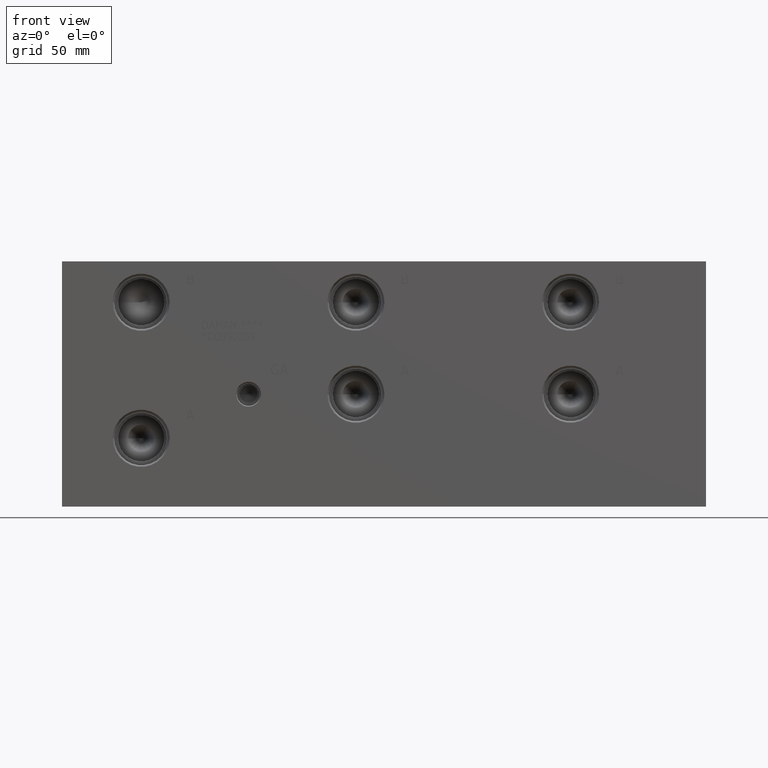
[diagram: clean part render]
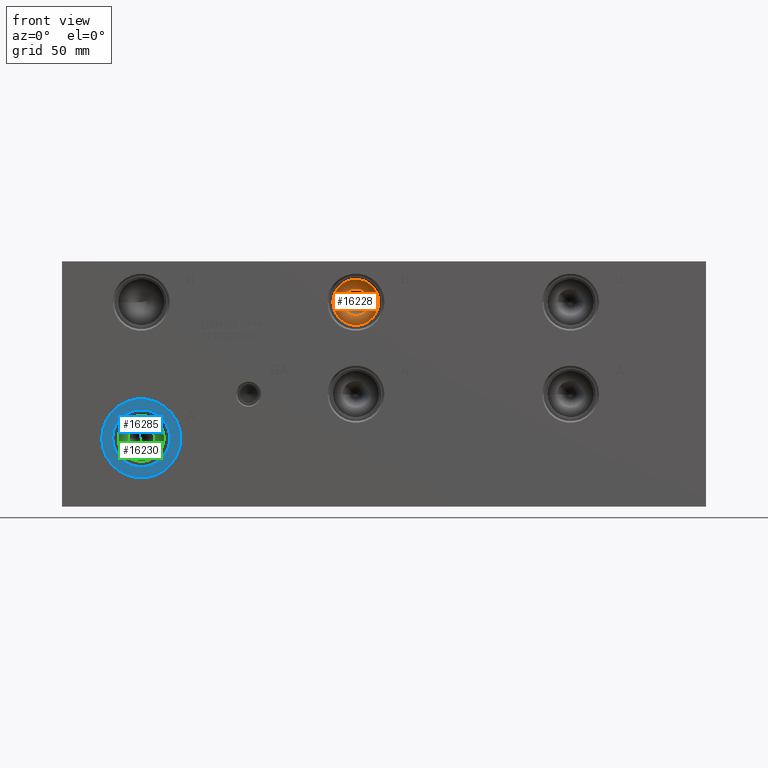
[diagram: same view with three faces highlighted in distinct colors, each labeled with its STEP entity id]
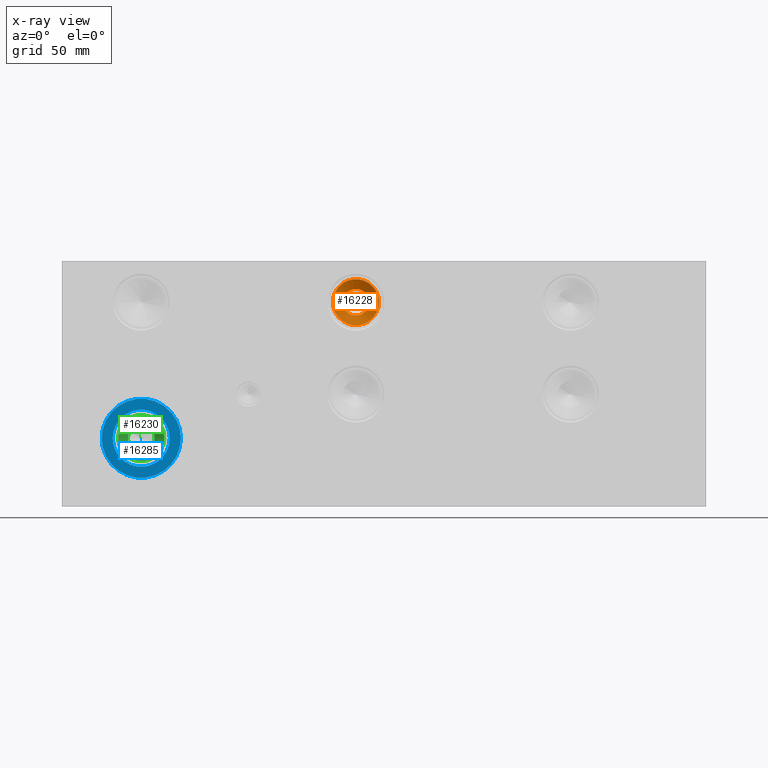
[diagram: x-ray of the same camera — body ghosted, the three highlighted faces saturated]
A machine part, front view with three faces highlighted in distinct colors.
The next image is the same camera in x-ray (body ghosted, the three faces saturated) — at least one of them is partly hidden behind the body in this view.
Their STEP definitions:

[orange] entity #16228 — the highlighted conical surface has half-angle 60 deg.
#189=CONICAL_SURFACE('',#17097,7.14375,1.0471975511966);
#451=CIRCLE('',#17098,14.2875);
#452=CIRCLE('',#17099,8.29239320143379);
#453=CIRCLE('',#17100,14.2875);
#2164=FACE_OUTER_BOUND('',#3101,.T.);
#3101=EDGE_LOOP('',(#13504,#13505,#13506,#13507,#13508));
#4603=LINE('',#27489,#5989);
#5989=VECTOR('',#20149,7.14375);
#7367=VERTEX_POINT('',#27485);
#7368=VERTEX_POINT('',#27486);
#7369=VERTEX_POINT('',#27488);
#9526=EDGE_CURVE('',#7367,#7368,#451,.T.);
#9527=EDGE_CURVE('',#7368,#7369,#4603,.T.);
#9528=EDGE_CURVE('',#7369,#7369,#452,.T.);
#9529=EDGE_CURVE('',#7368,#7367,#453,.T.);
#13504=ORIENTED_EDGE('',*,*,#9526,.T.);
#13505=ORIENTED_EDGE('',*,*,#9527,.T.);
#13506=ORIENTED_EDGE('',*,*,#9528,.F.);
#13507=ORIENTED_EDGE('',*,*,#9527,.F.);
#13508=ORIENTED_EDGE('',*,*,#9529,.T.);
#16228=ADVANCED_FACE('',(#2164),#189,.F.);
#17097=AXIS2_PLACEMENT_3D('',#27484,#20145,#20146);
#17098=AXIS2_PLACEMENT_3D('',#27487,#20147,#20148);
#17099=AXIS2_PLACEMENT_3D('',#27490,#20150,#20151);
#17100=AXIS2_PLACEMENT_3D('',#27491,#20152,#20153);
#20145=DIRECTION('center_axis',(0.,-1.,0.));
#20146=DIRECTION('ref_axis',(1.,0.,0.));
#20147=DIRECTION('center_axis',(0.,-1.,0.));
#20148=DIRECTION('ref_axis',(1.,0.,0.));
#20149=DIRECTION('',(0.866025403784438,0.5,1.06057523872491E-16));
#20150=DIRECTION('center_axis',(0.,-1.,0.));
#20151=DIRECTION('ref_axis',(1.,0.,0.));
#20152=DIRECTION('center_axis',(0.,-1.,0.));
#20153=DIRECTION('ref_axis',(1.,0.,0.));
#27484=CARTESIAN_POINT('Origin',(182.5498,36.7715359855234,127.));
#27485=CARTESIAN_POINT('',(196.8373,32.64709,127.));
#27486=CARTESIAN_POINT('',(168.2623,32.64709,127.));
#27487=CARTESIAN_POINT('Origin',(182.5498,32.64709,127.));
#27488=CARTESIAN_POINT('',(174.257406798566,36.1083665239728,127.));
#27489=CARTESIAN_POINT('',(175.40605,36.7715359855234,127.));
#27490=CARTESIAN_POINT('Origin',(182.5498,36.1083665239728,127.));
#27491=CARTESIAN_POINT('Origin',(182.5498,32.64709,127.));

[blue] entity #16285 — the highlighted planar face has unit normal (0, -1, 0).
#533=CIRCLE('',#17237,24.5618);
#534=CIRCLE('',#17238,24.5618);
#535=CIRCLE('',#17239,17.7546);
#883=FACE_BOUND('',#3166,.T.);
#2221=FACE_OUTER_BOUND('',#3165,.T.);
#3165=EDGE_LOOP('',(#13766,#13767));
#3166=EDGE_LOOP('',(#13768));
#7452=VERTEX_POINT('',#27759);
#7453=VERTEX_POINT('',#27760);
#7454=VERTEX_POINT('',#27763);
#9658=EDGE_CURVE('',#7452,#7453,#533,.T.);
#9659=EDGE_CURVE('',#7453,#7452,#534,.T.);
#9660=EDGE_CURVE('',#7454,#7454,#535,.T.);
#13766=ORIENTED_EDGE('',*,*,#9658,.T.);
#13767=ORIENTED_EDGE('',*,*,#9659,.T.);
#13768=ORIENTED_EDGE('',*,*,#9660,.F.);
#15022=PLANE('',#17236);
#16285=ADVANCED_FACE('',(#2221,#883),#15022,.T.);
#17236=AXIS2_PLACEMENT_3D('',#27758,#20473,#20474);
#17237=AXIS2_PLACEMENT_3D('',#27761,#20475,#20476);
#17238=AXIS2_PLACEMENT_3D('',#27762,#20477,#20478);
#17239=AXIS2_PLACEMENT_3D('',#27764,#20479,#20480);
#20473=DIRECTION('center_axis',(0.,-1.,0.));
#20474=DIRECTION('ref_axis',(1.,0.,0.));
#20475=DIRECTION('center_axis',(0.,-1.,0.));
#20476=DIRECTION('ref_axis',(1.,0.,0.));
#20477=DIRECTION('center_axis',(0.,-1.,0.));
#20478=DIRECTION('ref_axis',(1.,0.,0.));
#20479=DIRECTION('center_axis',(0.,-1.,0.));
#20480=DIRECTION('ref_axis',(1.,0.,0.));
#27758=CARTESIAN_POINT('Origin',(49.1998,0.7874,42.4688));
#27759=CARTESIAN_POINT('',(73.7616,0.7874,42.4688));
#27760=CARTESIAN_POINT('',(24.638,0.7874,42.4688));
#27761=CARTESIAN_POINT('Origin',(49.1998,0.7874,42.4688));
#27762=CARTESIAN_POINT('Origin',(49.1998,0.7874,42.4688));
#27763=CARTESIAN_POINT('',(31.4452,0.7874,42.4688));
#27764=CARTESIAN_POINT('Origin',(49.1998,0.7874,42.4688));

[green] entity #16230 — the highlighted conical surface has half-angle 60 deg.
#190=CONICAL_SURFACE('',#17103,7.14375,1.0471975511966);
#455=CIRCLE('',#17104,14.2875);
#456=CIRCLE('',#17105,8.29239320143379);
#457=CIRCLE('',#17106,14.2875);
#2166=FACE_OUTER_BOUND('',#3103,.T.);
#3103=EDGE_LOOP('',(#13514,#13515,#13516,#13517,#13518));
#4605=LINE('',#27501,#5991);
#5991=VECTOR('',#20163,7.14375);
#7371=VERTEX_POINT('',#27497);
#7372=VERTEX_POINT('',#27498);
#7373=VERTEX_POINT('',#27500);
#9532=EDGE_CURVE('',#7371,#7372,#455,.T.);
#9533=EDGE_CURVE('',#7372,#7373,#4605,.T.);
#9534=EDGE_CURVE('',#7373,#7373,#456,.T.);
#9535=EDGE_CURVE('',#7372,#7371,#457,.T.);
#13514=ORIENTED_EDGE('',*,*,#9532,.T.);
#13515=ORIENTED_EDGE('',*,*,#9533,.T.);
#13516=ORIENTED_EDGE('',*,*,#9534,.F.);
#13517=ORIENTED_EDGE('',*,*,#9533,.F.);
#13518=ORIENTED_EDGE('',*,*,#9535,.T.);
#16230=ADVANCED_FACE('',(#2166),#190,.F.);
#17103=AXIS2_PLACEMENT_3D('',#27496,#20159,#20160);
#17104=AXIS2_PLACEMENT_3D('',#27499,#20161,#20162);
#17105=AXIS2_PLACEMENT_3D('',#27502,#20164,#20165);
#17106=AXIS2_PLACEMENT_3D('',#27503,#20166,#20167);
#20159=DIRECTION('center_axis',(0.,-1.,0.));
#20160=DIRECTION('ref_axis',(1.,0.,0.));
#20161=DIRECTION('center_axis',(0.,-1.,0.));
#20162=DIRECTION('ref_axis',(1.,0.,0.));
#20163=DIRECTION('',(0.866025403784438,0.5,1.06057523872491E-16));
#20164=DIRECTION('center_axis',(0.,-1.,0.));
#20165=DIRECTION('ref_axis',(1.,0.,0.));
#20166=DIRECTION('center_axis',(0.,-1.,0.));
#20167=DIRECTION('ref_axis',(1.,0.,0.));
#27496=CARTESIAN_POINT('Origin',(49.1998,36.7715359855234,42.4688));
#27497=CARTESIAN_POINT('',(63.4873,32.64709,42.4688));
#27498=CARTESIAN_POINT('',(34.9123,32.64709,42.4688));
#27499=CARTESIAN_POINT('Origin',(49.1998,32.64709,42.4688));
#27500=CARTESIAN_POINT('',(40.9074067985662,36.1083665239728,42.4688));
#27501=CARTESIAN_POINT('',(42.05605,36.7715359855234,42.4688));
#27502=CARTESIAN_POINT('Origin',(49.1998,36.1083665239728,42.4688));
#27503=CARTESIAN_POINT('Origin',(49.1998,32.64709,42.4688));